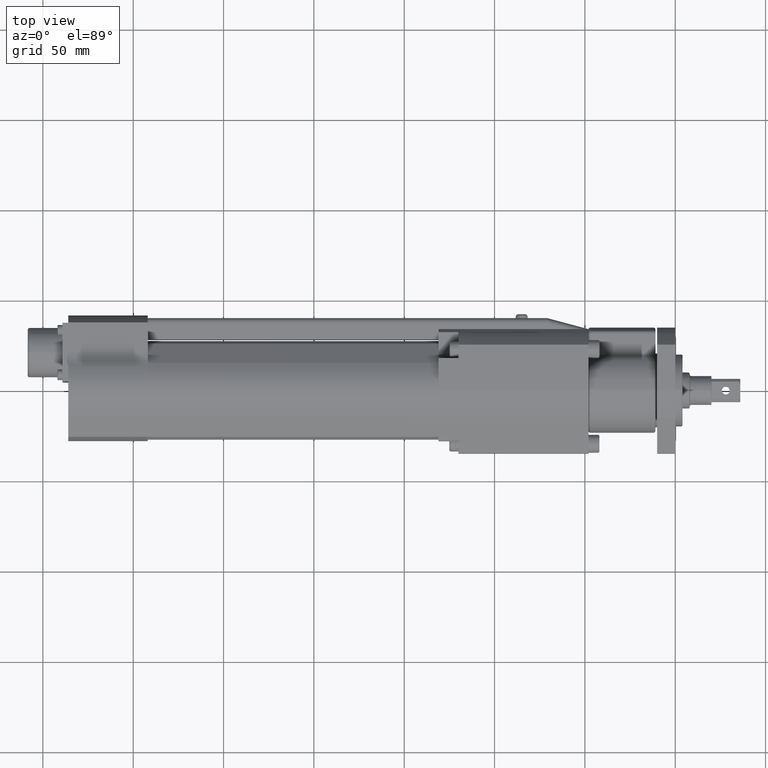
[diagram: clean part render]
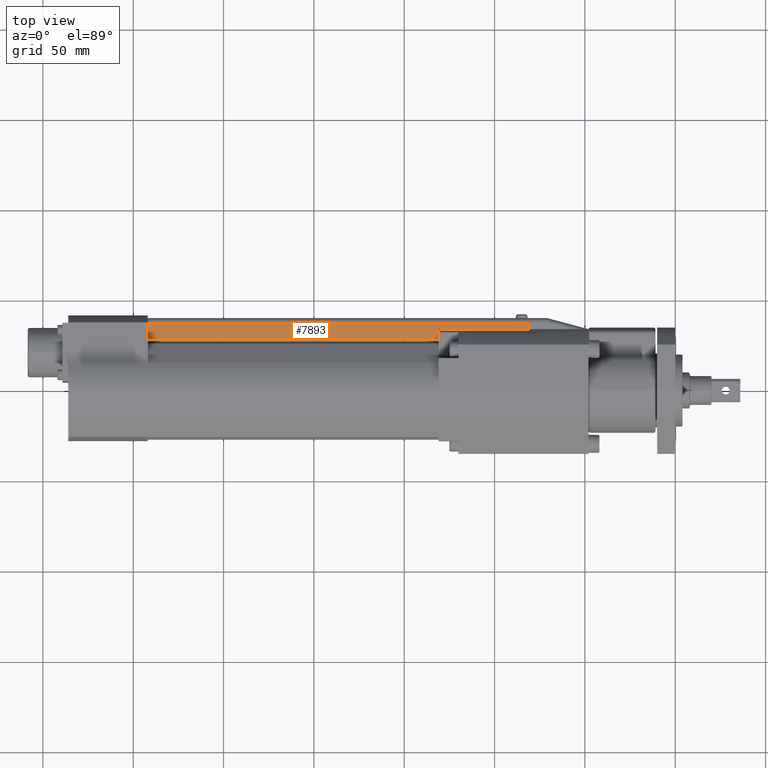
[diagram: same view with one face highlighted and labeled with its STEP entity id]
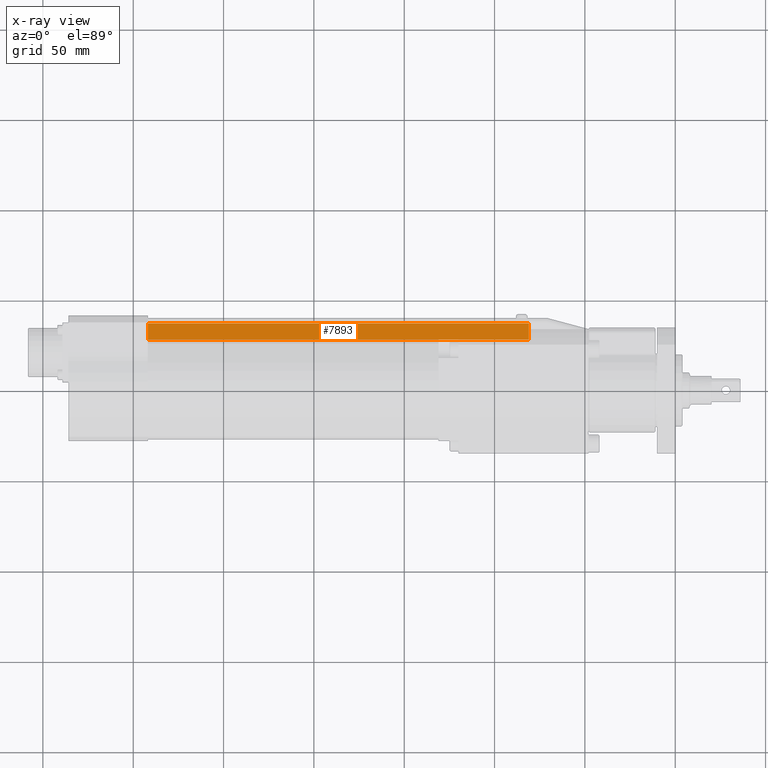
[diagram: x-ray of the same camera — body ghosted, the highlighted face saturated]
A machine part, top view. The second image highlights one B-rep face of the part: STEP entity #7893.
The next image is the same camera in x-ray: the body ghosted, the highlighted face saturated — about 0% of this face is hidden behind the body in this view.
In plain terms, the highlighted planar face has unit normal (0, 0, -1).
Its self-contained STEP definition (entity closure, byte-faithful):
#32 = CARTESIAN_POINT ( 'NONE',  ( -81.00000000000000000, 37.00000000000000700, 9.000000000000000000 ) ) ;
#165 = LINE ( 'NONE', #2601, #9010 ) ;
#303 = VECTOR ( 'NONE', #6919, 1000.000000000000000 ) ;
#538 = LINE ( 'NONE', #9051, #303 ) ;
#710 = VERTEX_POINT ( 'NONE', #3638 ) ;
#1038 = VERTEX_POINT ( 'NONE', #2543 ) ;
#1206 = DIRECTION ( 'NONE',  ( 1.000000000000000000, -1.156482317317871500E-015, -0.0000000000000000000 ) ) ;
#1208 = PLANE ( 'NONE',  #2360 ) ;
#1330 = ORIENTED_EDGE ( 'NONE', *, *, #5398, .F. ) ;
#1612 = LINE ( 'NONE', #6904, #5193 ) ;
#1743 = VERTEX_POINT ( 'NONE', #2014 ) ;
#2014 = CARTESIAN_POINT ( 'NONE',  ( -292.0000000000000600, 37.00000000000024900, 9.000000000000000000 ) ) ;
#2360 = AXIS2_PLACEMENT_3D ( 'NONE', #2619, #7685, #3356 ) ;
#2543 = CARTESIAN_POINT ( 'NONE',  ( -81.00000000000001400, 28.00000000000000000, 9.000000000000000000 ) ) ;
#2601 = CARTESIAN_POINT ( 'NONE',  ( -313.6333076527839700, 28.00000000000027000, 9.000000000000000000 ) ) ;
#2619 = CARTESIAN_POINT ( 'NONE',  ( -313.6333076527839700, 37.00000000000027700, 9.000000000000000000 ) ) ;
#2718 = DIRECTION ( 'NONE',  ( 0.0000000000000000000, 1.000000000000000000, 0.0000000000000000000 ) ) ;
#3245 = ORIENTED_EDGE ( 'NONE', *, *, #3706, .T. ) ;
#3339 = EDGE_CURVE ( 'NONE', #1743, #5910, #1612, .T. ) ;
#3356 = DIRECTION ( 'NONE',  ( -1.000000000000000000, 0.0000000000000000000, 0.0000000000000000000 ) ) ;
#3638 = CARTESIAN_POINT ( 'NONE',  ( -292.0000000000000600, 28.00000000000024900, 9.000000000000000000 ) ) ;
#3706 = EDGE_CURVE ( 'NONE', #710, #1038, #165, .T. ) ;
#4845 = FACE_OUTER_BOUND ( 'NONE', #7318, .T. ) ;
#4901 = ORIENTED_EDGE ( 'NONE', *, *, #3339, .F. ) ;
#5193 = VECTOR ( 'NONE', #1206, 1000.000000000000000 ) ;
#5332 = VECTOR ( 'NONE', #2718, 1000.000000000000000 ) ;
#5398 = EDGE_CURVE ( 'NONE', #710, #1743, #5572, .T. ) ;
#5572 = LINE ( 'NONE', #7007, #5332 ) ;
#5767 = ORIENTED_EDGE ( 'NONE', *, *, #6082, .T. ) ;
#5910 = VERTEX_POINT ( 'NONE', #32 ) ;
#6082 = EDGE_CURVE ( 'NONE', #1038, #5910, #538, .T. ) ;
#6904 = CARTESIAN_POINT ( 'NONE',  ( -313.6333076527839700, 37.00000000000027700, 9.000000000000000000 ) ) ;
#6919 = DIRECTION ( 'NONE',  ( 1.541976423090494400E-015, 1.000000000000000000, -0.0000000000000000000 ) ) ;
#7007 = CARTESIAN_POINT ( 'NONE',  ( -292.0000000000000600, 37.00000000000027700, 9.000000000000000000 ) ) ;
#7318 = EDGE_LOOP ( 'NONE', ( #1330, #3245, #5767, #4901 ) ) ;
#7661 = DIRECTION ( 'NONE',  ( 1.000000000000000000, -1.156482317317871500E-015, -0.0000000000000000000 ) ) ;
#7685 = DIRECTION ( 'NONE',  ( 0.0000000000000000000, 0.0000000000000000000, -1.000000000000000000 ) ) ;
#7893 = ADVANCED_FACE ( 'NONE', ( #4845 ), #1208, .F. ) ;
#9010 = VECTOR ( 'NONE', #7661, 1000.000000000000000 ) ;
#9051 = CARTESIAN_POINT ( 'NONE',  ( -81.00000000000000000, 37.00000000000000700, 9.000000000000000000 ) ) ;